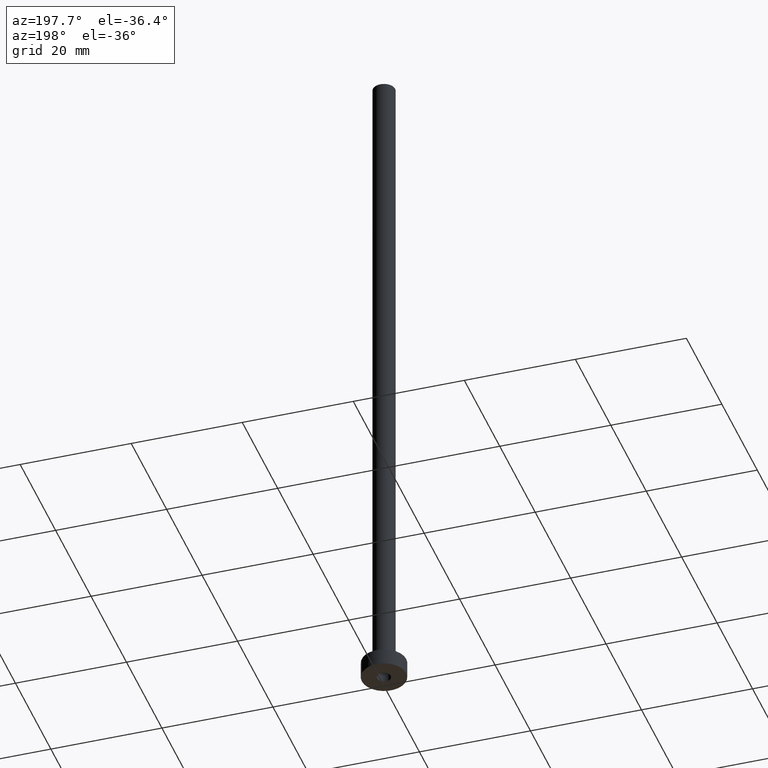
[diagram: clean part render]
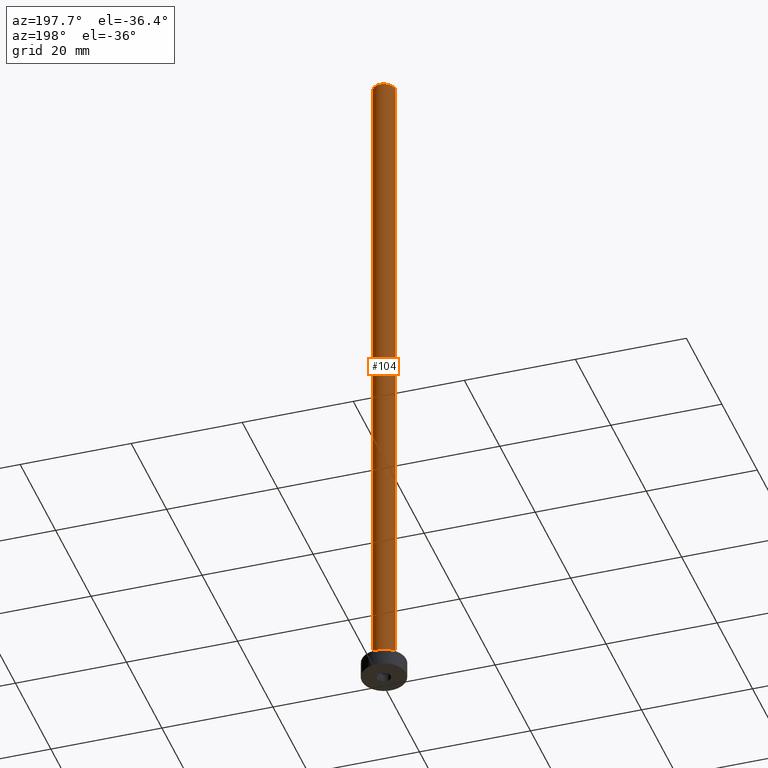
[diagram: same view with one face highlighted and labeled with its STEP entity id]
A machine part, auxiliary view. The second image highlights one B-rep face of the part: STEP entity #104.
In plain terms, the highlighted cylindrical surface (edge-blend (fillet) strip) has radius 2 mm, axis along (-0, -0, -1).
Its self-contained STEP definition (entity closure, byte-faithful):
#20 = ORIENTED_EDGE ( 'NONE', *, *, #458, .F. ) ;
#26 = CIRCLE ( 'NONE', #31, 2.000000000000000000 ) ;
#27 = EDGE_CURVE ( 'NONE', #251, #155, #26, .T. ) ;
#31 = AXIS2_PLACEMENT_3D ( 'NONE', #80, #111, #77 ) ;
#39 = ORIENTED_EDGE ( 'NONE', *, *, #421, .F. ) ;
#77 = DIRECTION ( 'NONE',  ( 1.000000000000000000, 0.000000000000000000, 0.000000000000000000 ) ) ;
#80 = CARTESIAN_POINT ( 'NONE',  ( 0.000000000000000000, 0.000000000000000000, 3.299999999999997158 ) ) ;
#84 = VERTEX_POINT ( 'NONE', #339 ) ;
#104 = ADVANCED_FACE ( 'NONE', ( #387 ), #444, .T. ) ;
#111 = DIRECTION ( 'NONE',  ( 0.000000000000000000, 0.000000000000000000, 1.000000000000000000 ) ) ;
#113 = EDGE_LOOP ( 'NONE', ( #39, #235, #400, #20 ) ) ;
#114 = DIRECTION ( 'NONE',  ( 0.000000000000000000, 0.000000000000000000, 1.000000000000000000 ) ) ;
#115 = LINE ( 'NONE', #380, #165 ) ;
#117 = CARTESIAN_POINT ( 'NONE',  ( 0.000000000000000000, 0.000000000000000000, 125.0000000000000000 ) ) ;
#128 = CARTESIAN_POINT ( 'NONE',  ( -2.000000000000000000, 0.000000000000000000, 3.299999999999997158 ) ) ;
#155 = VERTEX_POINT ( 'NONE', #128 ) ;
#160 = DIRECTION ( 'NONE',  ( -0.000000000000000000, -0.000000000000000000, -1.000000000000000000 ) ) ;
#165 = VECTOR ( 'NONE', #160, 1000.000000000000000 ) ;
#179 = EDGE_CURVE ( 'NONE', #403, #251, #115, .T. ) ;
#222 = DIRECTION ( 'NONE',  ( -0.000000000000000000, -0.000000000000000000, -1.000000000000000000 ) ) ;
#225 = CARTESIAN_POINT ( 'NONE',  ( 2.000000000000000000, 2.449293598294705921E-16, 125.0000000000000000 ) ) ;
#235 = ORIENTED_EDGE ( 'NONE', *, *, #179, .T. ) ;
#251 = VERTEX_POINT ( 'NONE', #416 ) ;
#258 = DIRECTION ( 'NONE',  ( -0.000000000000000000, -0.000000000000000000, -1.000000000000000000 ) ) ;
#276 = CIRCLE ( 'NONE', #361, 2.000000000000000000 ) ;
#296 = AXIS2_PLACEMENT_3D ( 'NONE', #407, #258, #349 ) ;
#329 = VECTOR ( 'NONE', #222, 1000.000000000000000 ) ;
#339 = CARTESIAN_POINT ( 'NONE',  ( -2.000000000000000000, 0.000000000000000000, 125.0000000000000000 ) ) ;
#349 = DIRECTION ( 'NONE',  ( -1.000000000000000000, 0.000000000000000000, 0.000000000000000000 ) ) ;
#361 = AXIS2_PLACEMENT_3D ( 'NONE', #117, #114, #461 ) ;
#380 = CARTESIAN_POINT ( 'NONE',  ( 2.000000000000000000, 2.449293598294705921E-16, 125.0000000000000000 ) ) ;
#387 = FACE_OUTER_BOUND ( 'NONE', #113, .T. ) ;
#400 = ORIENTED_EDGE ( 'NONE', *, *, #27, .T. ) ;
#402 = CARTESIAN_POINT ( 'NONE',  ( -2.000000000000000000, 0.000000000000000000, 125.0000000000000000 ) ) ;
#403 = VERTEX_POINT ( 'NONE', #225 ) ;
#407 = CARTESIAN_POINT ( 'NONE',  ( 0.000000000000000000, 0.000000000000000000, 125.0000000000000000 ) ) ;
#416 = CARTESIAN_POINT ( 'NONE',  ( 2.000000000000000000, 2.449293598294705921E-16, 3.299999999999997158 ) ) ;
#421 = EDGE_CURVE ( 'NONE', #403, #84, #276, .T. ) ;
#438 = LINE ( 'NONE', #402, #329 ) ;
#444 = CYLINDRICAL_SURFACE ( 'NONE', #296, 2.000000000000000000 ) ;
#458 = EDGE_CURVE ( 'NONE', #84, #155, #438, .T. ) ;
#461 = DIRECTION ( 'NONE',  ( 1.000000000000000000, 0.000000000000000000, 0.000000000000000000 ) ) ;